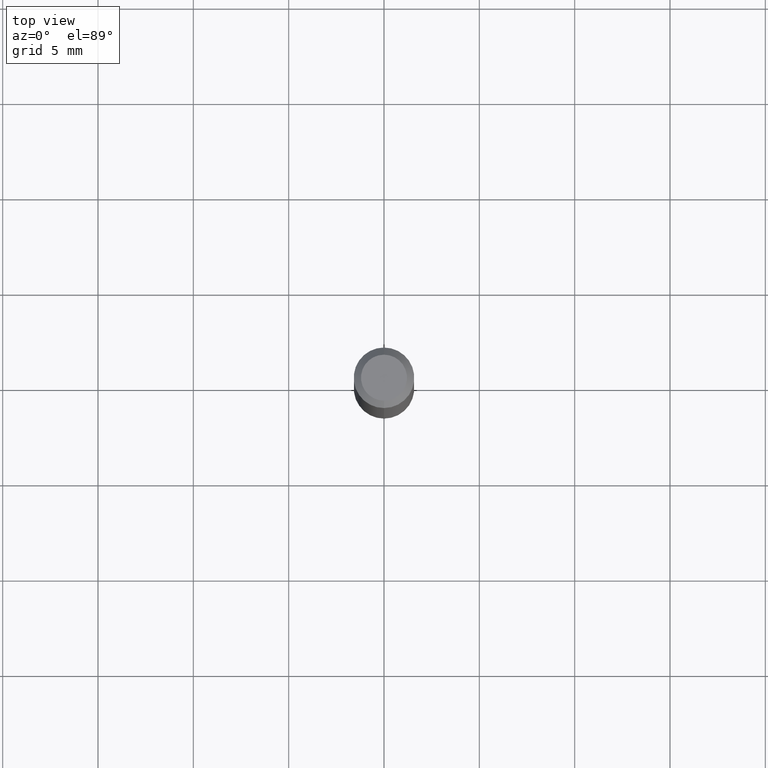
[diagram: clean part render]
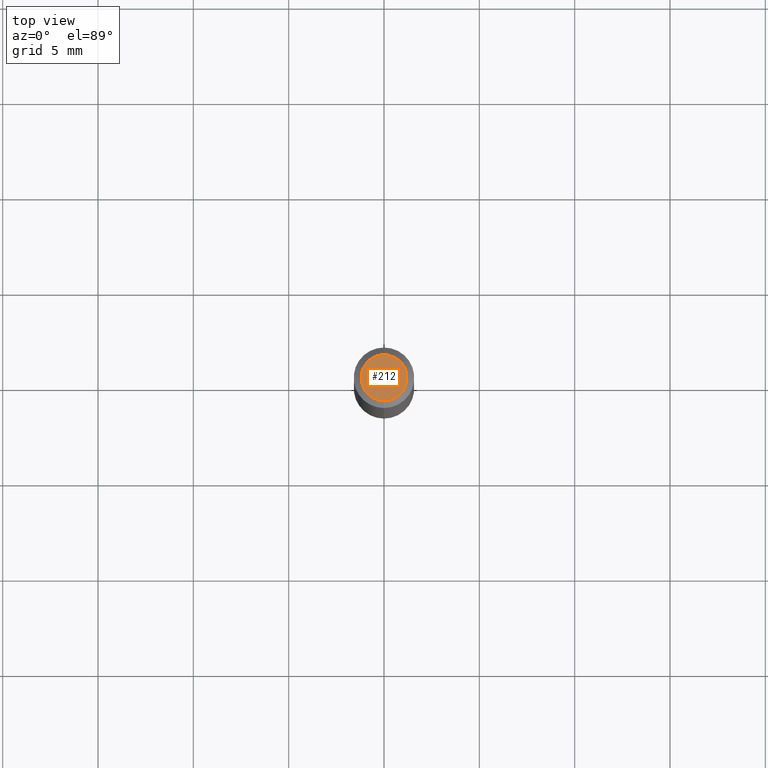
[diagram: same view with one face highlighted and labeled with its STEP entity id]
A machine part, top view. The second image highlights one B-rep face of the part: STEP entity #212.
In plain terms, the highlighted planar face has unit normal (0, -0, -1).
Its self-contained STEP definition (entity closure, byte-faithful):
#9 = AXIS2_PLACEMENT_3D ( 'NONE', #436, #85, #240 ) ;
#84 = VERTEX_POINT ( 'NONE', #256 ) ;
#85 = DIRECTION ( 'NONE',  ( -2.445476314194912029E-29, 3.491470586945817923E-15, 1.000000000000000000 ) ) ;
#122 = AXIS2_PLACEMENT_3D ( 'NONE', #487, #375, #293 ) ;
#144 = CARTESIAN_POINT ( 'NONE',  ( -3.773273898774340269E-16, -0.04749999999999999362, 4.053329848526901620E-16 ) ) ;
#146 = EDGE_CURVE ( 'NONE', #170, #84, #209, .T. ) ;
#170 = VERTEX_POINT ( 'NONE', #144 ) ;
#171 = ORIENTED_EDGE ( 'NONE', *, *, #360, .T. ) ;
#180 = ORIENTED_EDGE ( 'NONE', *, *, #146, .T. ) ;
#183 = AXIS2_PLACEMENT_3D ( 'NONE', #414, #222, #380 ) ;
#207 = EDGE_LOOP ( 'NONE', ( #171, #180 ) ) ;
#209 = CIRCLE ( 'NONE', #183, 0.04749999999999999362 ) ;
#212 = ADVANCED_FACE ( 'NONE', ( #448 ), #253, .F. ) ;
#222 = DIRECTION ( 'NONE',  ( -2.445476314194912029E-29, 3.491470586945817923E-15, 1.000000000000000000 ) ) ;
#235 = CIRCLE ( 'NONE', #9, 0.04749999999999999362 ) ;
#240 = DIRECTION ( 'NONE',  ( -6.982962677686266711E-15, -1.000000000000000000, 3.491470586945817134E-15 ) ) ;
#253 = PLANE ( 'NONE',  #122 ) ;
#256 = CARTESIAN_POINT ( 'NONE',  ( 3.840629472727447874E-16, 0.04749999999999999362, 7.364327909283752044E-17 ) ) ;
#293 = DIRECTION ( 'NONE',  ( 6.982962677686265922E-15, 1.000000000000000000, -3.491470586945817529E-15 ) ) ;
#360 = EDGE_CURVE ( 'NONE', #84, #170, #235, .T. ) ;
#375 = DIRECTION ( 'NONE',  ( 2.445476314194912029E-29, -3.491470586945817529E-15, -1.000000000000000000 ) ) ;
#380 = DIRECTION ( 'NONE',  ( -6.982962677686266711E-15, -1.000000000000000000, 3.491470586945817134E-15 ) ) ;
#414 = CARTESIAN_POINT ( 'NONE',  ( -5.856625542701792514E-45, 8.361657687055033706E-31, 2.394881319727638412E-16 ) ) ;
#436 = CARTESIAN_POINT ( 'NONE',  ( -5.856625542701792514E-45, 8.361657687055033706E-31, 2.394881319727638412E-16 ) ) ;
#448 = FACE_OUTER_BOUND ( 'NONE', #207, .T. ) ;
#487 = CARTESIAN_POINT ( 'NONE',  ( 3.316907271900976096E-16, 0.04749999999999999362, -4.610078689354440633E-17 ) ) ;